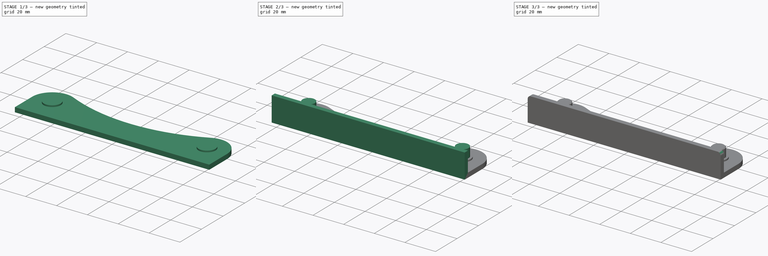
[diagram: build sequence overview — one tinted view per stage of 3, left to right]
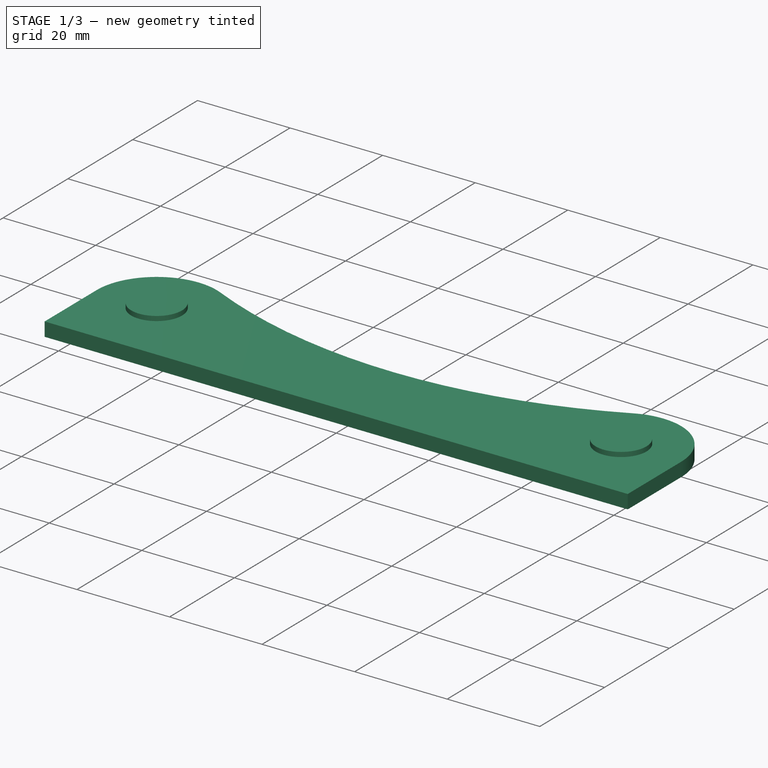
[diagram: stage 1 of 3 — iso view after this stage's code; geometry added in this stage tinted green]
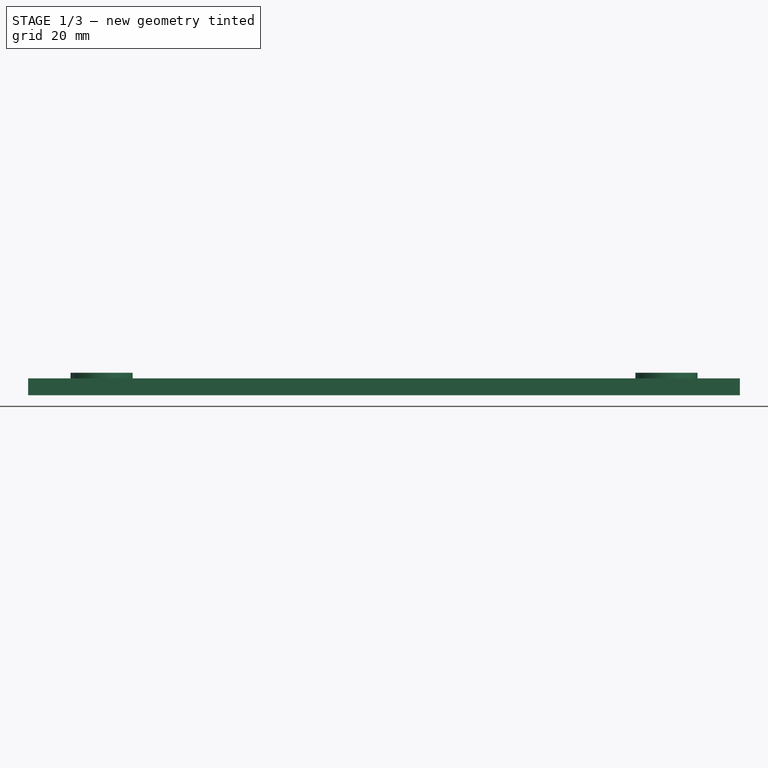
[diagram: stage 1 of 3 — front view after this stage's code; geometry added in this stage tinted green]
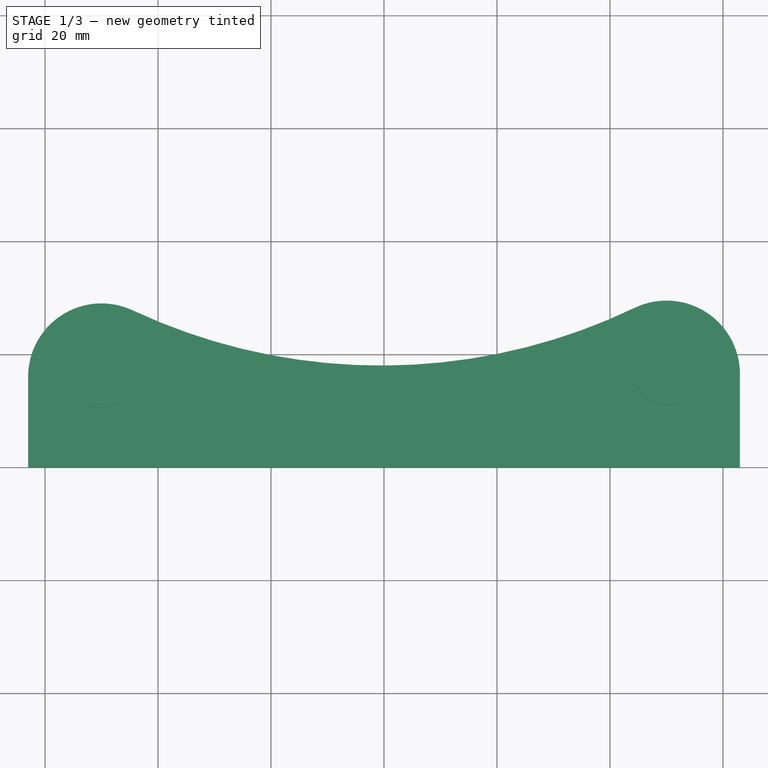
[diagram: stage 1 of 3 — top view after this stage's code; geometry added in this stage tinted green]
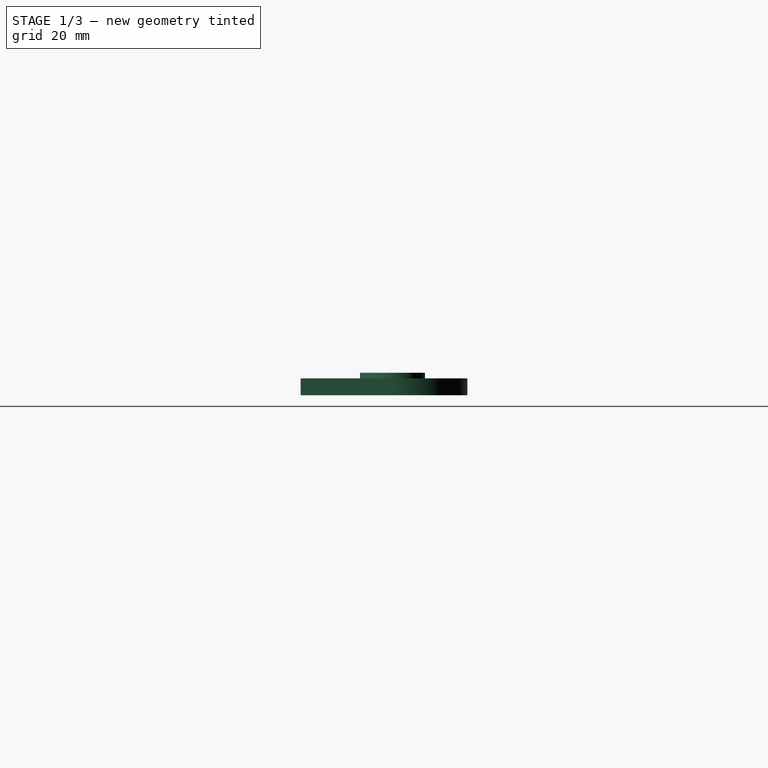
[diagram: stage 1 of 3 — right view after this stage's code; geometry added in this stage tinted green]
FCSTD DOCUMENT  (FreeCAD 0.22R38314 (Git))
Label: Bearing_Holder_Single
License: All rights reserved
LicenseURL: https://en.wikipedia.org/wiki/All_rights_reserved
objects: PartDesign::Pad×4, Sketcher::SketchObject×1, PartDesign::Chamfer×1, PartDesign::Fillet×1, PartDesign::Body×1
note: 20 computed .brp shape members not serialized (recipe doc carries the construction recipe); baked Part::Feature solids carry a one-line shape summary decoded from their .brp

FEATURE [Sketcher::SketchObject] Sketch
  AttachmentSupport = -> [XY_Plane]
  FullyConstrained = true
  MapMode = 5
  sketch-geometry (14):
    g0: Circle CenterX=-50 CenterY=16 CenterZ=0 NormalX=0 NormalY=0 NormalZ=1 AngleXU=0 Radius=4.05
    g1: LineSegment StartX=-63 StartY=3 StartZ=0 EndX=0 EndY=3 EndZ=0
    g2: Circle CenterX=-50 CenterY=16 CenterZ=0 NormalX=0 NormalY=0 NormalZ=1 AngleXU=0 Radius=5.5
    g3: Circle CenterX=50 CenterY=16.5 CenterZ=0 NormalX=0 NormalY=0 NormalZ=1 AngleXU=0 Radius=4.05
    g4: LineSegment StartX=63 StartY=3 StartZ=0 EndX=0 EndY=3 EndZ=0
    g5: Circle CenterX=50 CenterY=16.5 CenterZ=0 NormalX=0 NormalY=0 NormalZ=1 AngleXU=0 Radius=5.5
    g6: LineSegment StartX=-63 StartY=0 StartZ=0 EndX=63 EndY=0 EndZ=0
    g7: LineSegment StartX=-63 StartY=0 StartZ=0 EndX=-63 EndY=3 EndZ=0
    g8: LineSegment StartX=-63 StartY=3 StartZ=0 EndX=-63 EndY=16 EndZ=0
    g9: ArcOfCircle CenterX=50 CenterY=16.5 CenterZ=0 NormalX=0 NormalY=0 NormalZ=1 AngleXU=0 Radius=13 StartAngle=0 EndAngle=2.01837
    g10: ArcOfCircle CenterX=-50 CenterY=16 CenterZ=0 NormalX=0 NormalY=0 NormalZ=1 AngleXU=0 Radius=13 StartAngle=1.13322 EndAngle=3.14159
    g11: LineSegment StartX=63 StartY=3 StartZ=0 EndX=63 EndY=0 EndZ=0
    g12: LineSegment StartX=63 StartY=16.5 StartZ=0 EndX=63 EndY=3 EndZ=0
    g13: ArcOfCircle CenterX=-0.527506 CenterY=121.751 CenterZ=0 NormalX=0 NormalY=0 NormalZ=1 AngleXU=0 Radius=103.751 StartAngle=4.27482 EndAngle=5.15996
  constraints (37):
    c: PointOnObject(g1,g-2)
    c: Horizontal(g1)
    c: Coincident(g2,g0)
    c: Diameter(g0) = 8.1
    c: Diameter(g2) = 11
    c: Horizontal(g4)
    c: Coincident(g5,g3)
    c: Diameter(g3) = 8.1
    c: Diameter(g5) = 11
    c: Coincident(g4,g1)
    c: DistanceX(g-1,g3) = 50
    c: PointOnObject(g6,g-1)
    c: PointOnObject(g6,g-1)
    c: Coincident(g7,g6)
    c: Coincident(g7,g1)
    c: Coincident(g8,g1)
    c: Vertical(g8)
    c: Distance(g6,g1) = 3
    c: DistanceX(g0,g3) = 100
    c: Vertical(g7)
    c: Distance(g3,g4) = 13.5
    c: Distance(g0,g1) = 13
    c: Coincident(g9,g3)
    c: Radius(g9) = 13
    c: Coincident(g10,g0)
    c: Radius(g10) = 13
    c: Tangent(g10,g8) = 1.5708
    c: Coincident(g11,g4)
    c: Coincident(g11,g6)
    c: Vertical(g11)
    c: Coincident(g12,g4)
    c: Vertical(g12)
    c: Tangent(g12,g9) = 1.5708
    c: Coincident(g13,g9)
    c: Distance(g13,g6) = 18
    c: Tangent(g13,g9,g9) = 1.5708
    c: Tangent(g13,g10) = 1.5708
FEATURE [PartDesign::Pad] Pad
  Direction = (0,0,1)
  Length = 3
  Length2 = 10
  Profile = -> Sketch [Edge11,Edge10,Edge6,Edge5,Edge4,Edge3,Edge7,Edge2]
  ReferenceAxis = -> Sketch [N_Axis]
  Refine = true
  Suppressed = false
  Type = 0
FEATURE [PartDesign::Pad] Pad001
  BaseFeature = -> Pad
  Direction = (0,0,1)
  Length = 4
  Length2 = 10
  Profile = -> Sketch [Edge12,Edge14]
  ReferenceAxis = -> Sketch [N_Axis]
  Refine = true
  Suppressed = false
  Type = 0
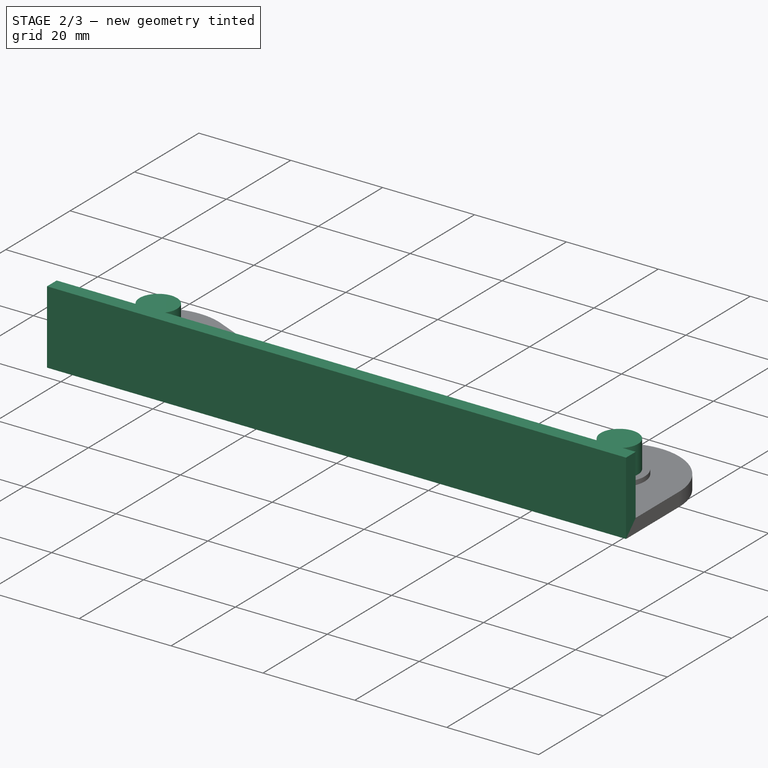
[diagram: stage 2 of 3 — iso view after this stage's code; geometry added in this stage tinted green]
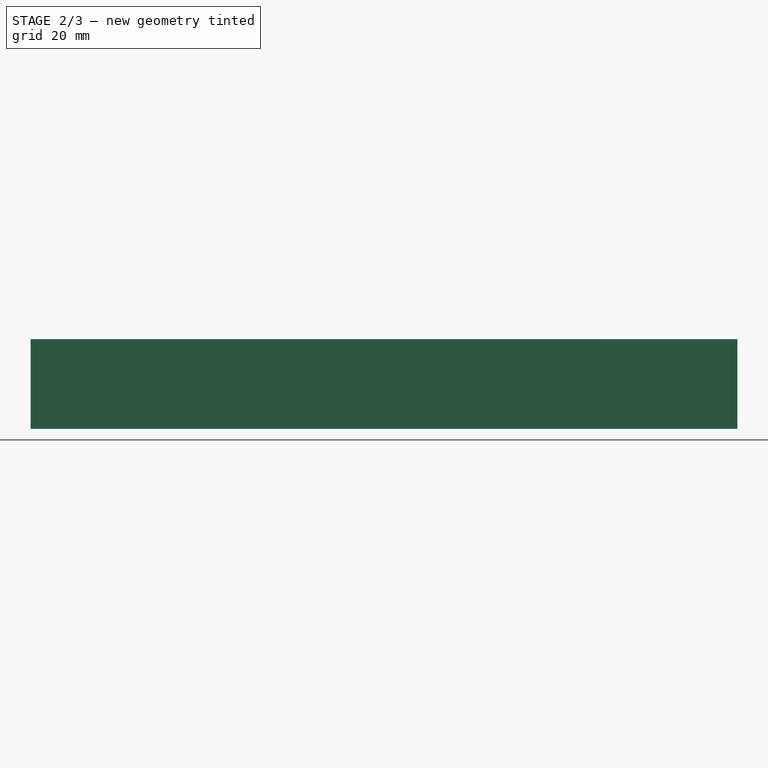
[diagram: stage 2 of 3 — front view after this stage's code; geometry added in this stage tinted green]
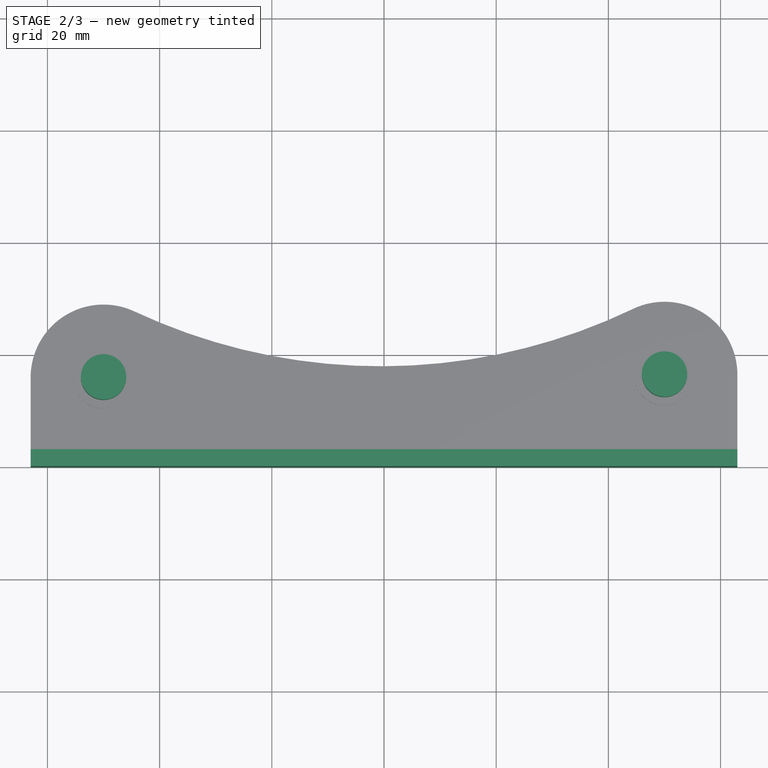
[diagram: stage 2 of 3 — top view after this stage's code; geometry added in this stage tinted green]
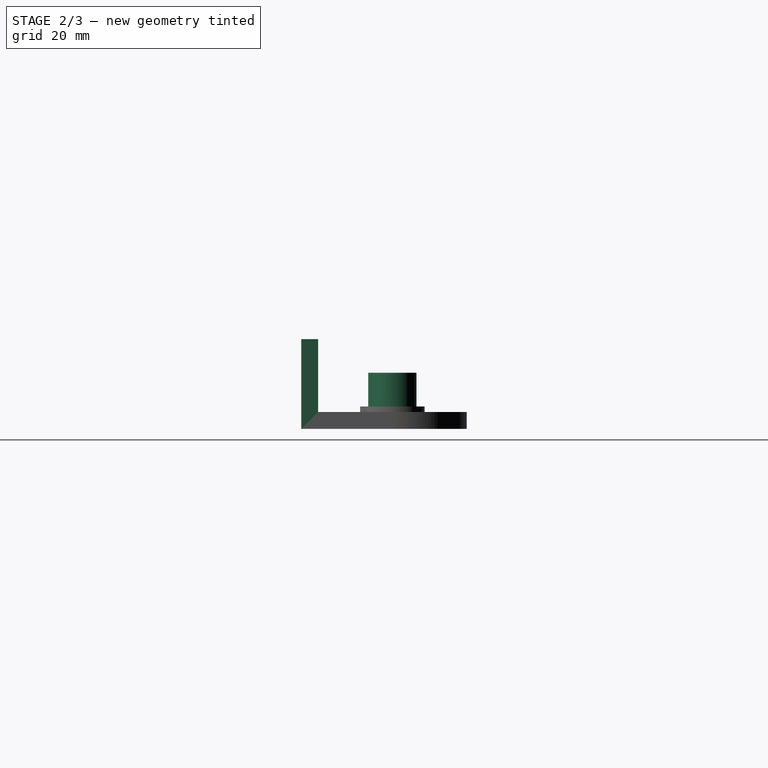
[diagram: stage 2 of 3 — right view after this stage's code; geometry added in this stage tinted green]
FEATURE [PartDesign::Pad] Pad002
  BaseFeature = -> Pad001
  Direction = (0,0,1)
  Length = 10
  Length2 = 10
  Profile = -> Sketch [Edge1,Edge13]
  ReferenceAxis = -> Sketch [N_Axis]
  Refine = true
  Suppressed = false
  Type = 0
FEATURE [PartDesign::Pad] Pad003
  BaseFeature = -> Pad002
  Direction = (0,0,1)
  Length = 16
  Length2 = 10
  Profile = -> Sketch [Edge11,Edge2,Edge8,Edge10,Edge9]
  ReferenceAxis = -> Sketch [N_Axis]
  Refine = true
  Suppressed = false
  Type = 0
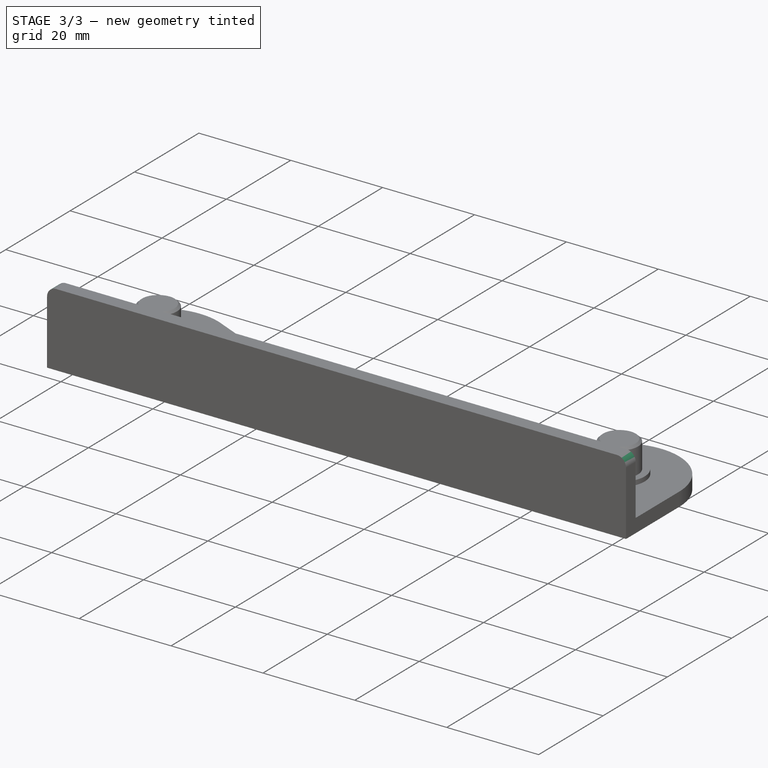
[diagram: stage 3 of 3 — iso view after this stage's code; geometry added in this stage tinted green]
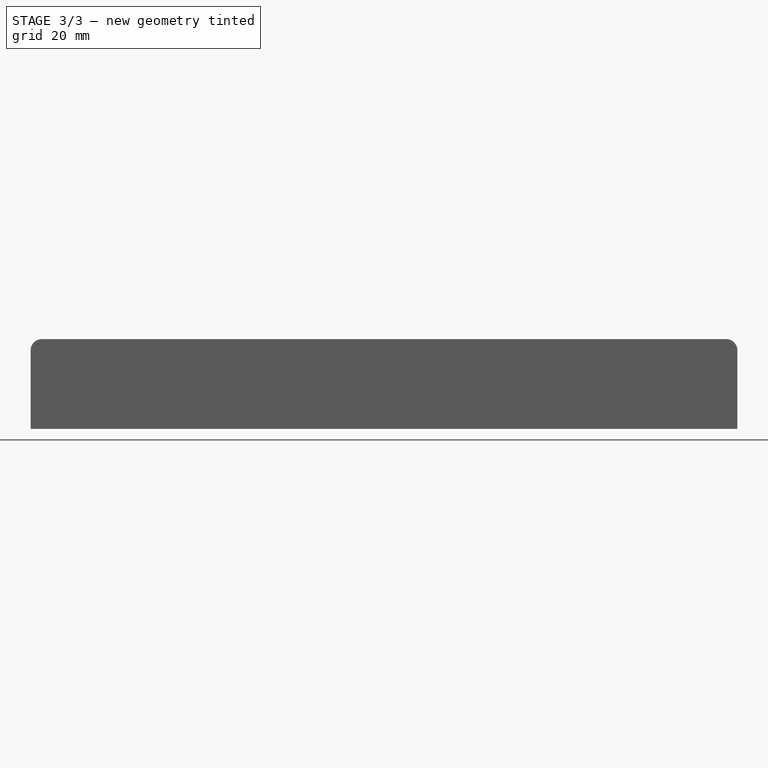
[diagram: stage 3 of 3 — front view after this stage's code; geometry added in this stage tinted green]
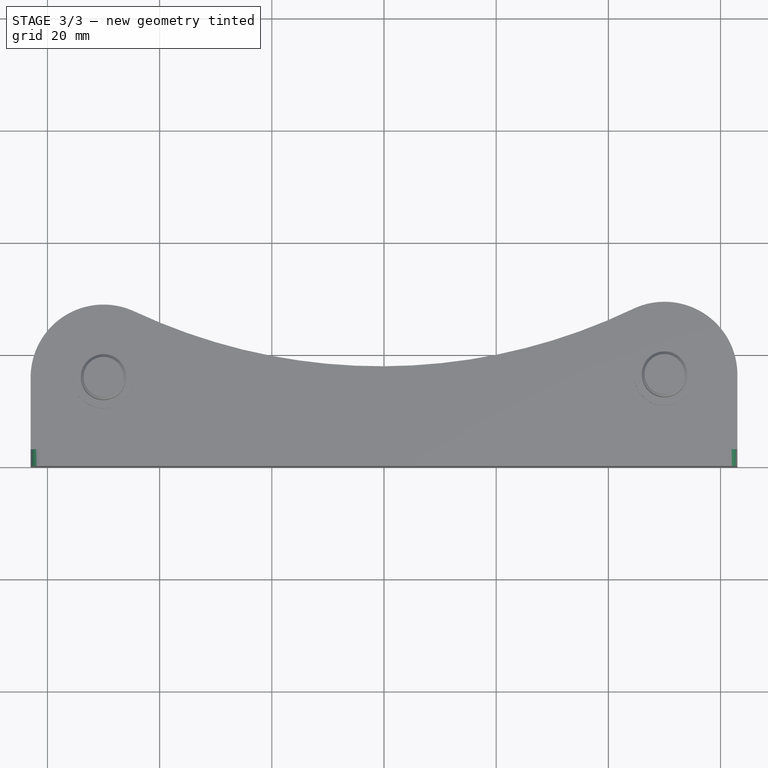
[diagram: stage 3 of 3 — top view after this stage's code; geometry added in this stage tinted green]
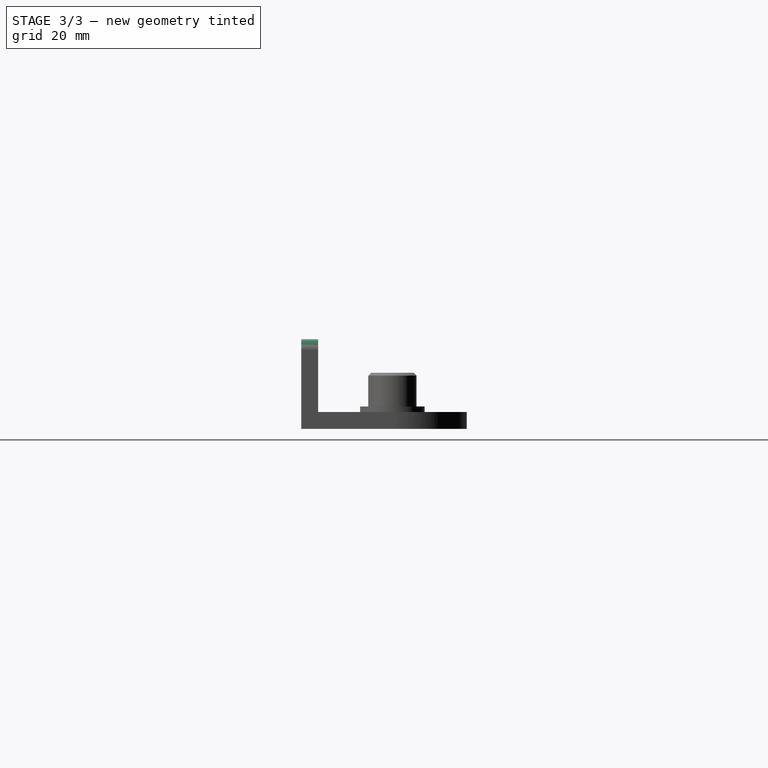
[diagram: stage 3 of 3 — right view after this stage's code; geometry added in this stage tinted green]
FEATURE [PartDesign::Chamfer] Chamfer
  Angle = 45
  Base = -> Pad003 [Edge29,Edge31]
  BaseFeature = -> Pad003
  ChamferType = 0
  FlipDirection = false
  Refine = true
  Size = 0.5
  Size2 = 1
  SupportTransform = false
  Suppressed = false
  UseAllEdges = false
FEATURE [PartDesign::Fillet] Fillet
  Base = -> Chamfer [Edge17,Edge29]
  BaseFeature = -> Chamfer
  Radius = 2
  Refine = true
  SupportTransform = false
  Suppressed = false
  UseAllEdges = false
FEATURE [PartDesign::Body] Body
  AllowCompound = false
  Group = -> [Sketch,Pad,Pad001,Pad002,Pad003,Chamfer,Fillet]
  Origin = -> Origin
  Tip = -> Fillet
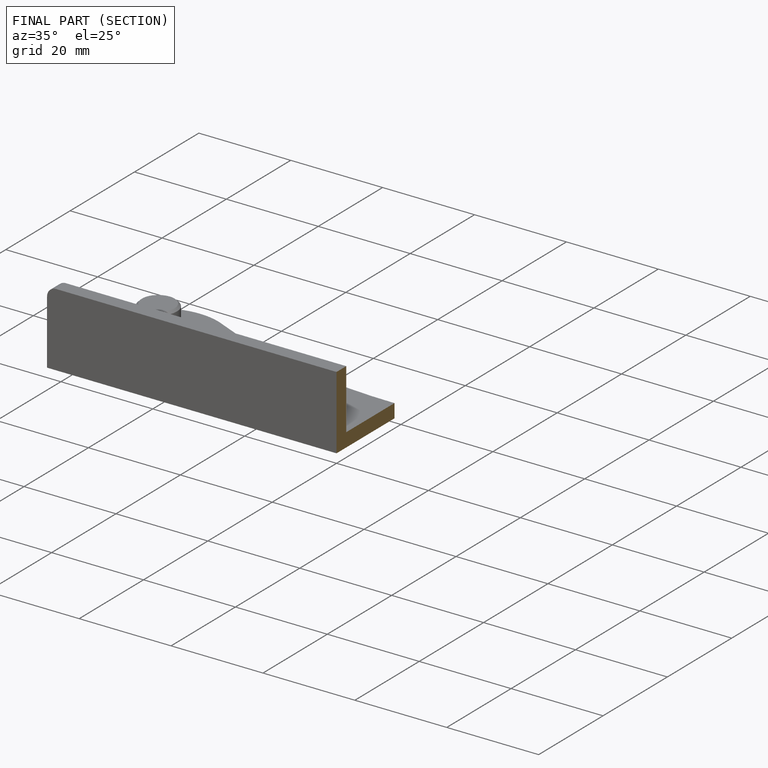
[diagram: finished part — half-section view (interior)]
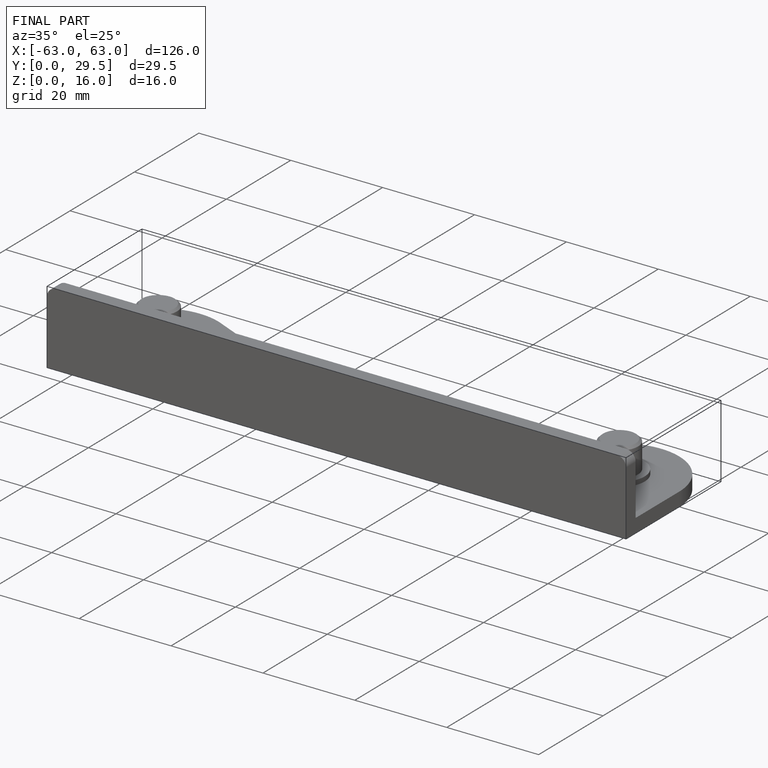
[diagram: finished part — iso view with bounding-box wireframe]
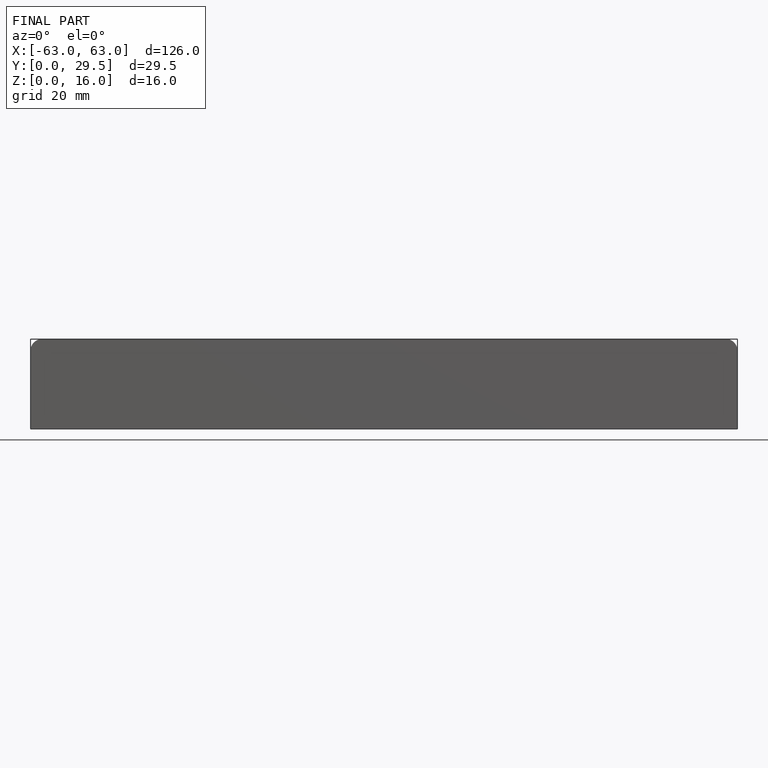
[diagram: finished part — front view with bounding-box wireframe]
